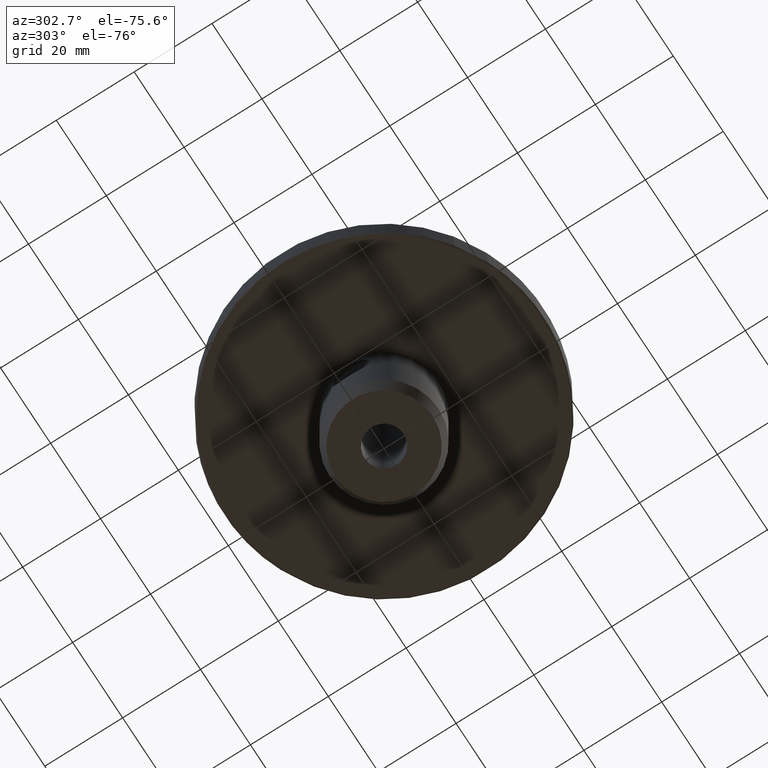
[diagram: clean part render]
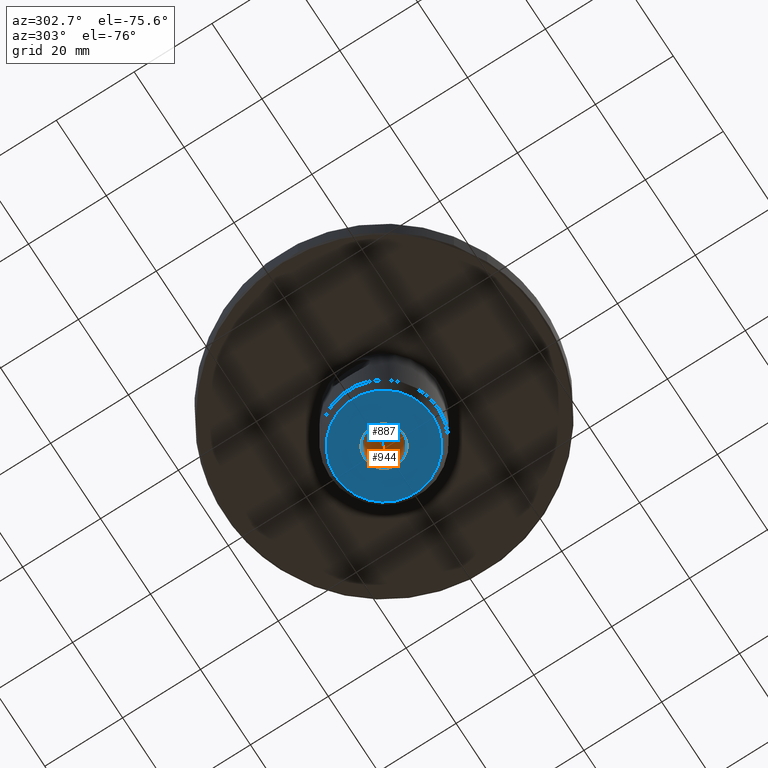
[diagram: same view with the hole feature highlighted: cylindrical wall and planar end face, labeled with their STEP entity ids]
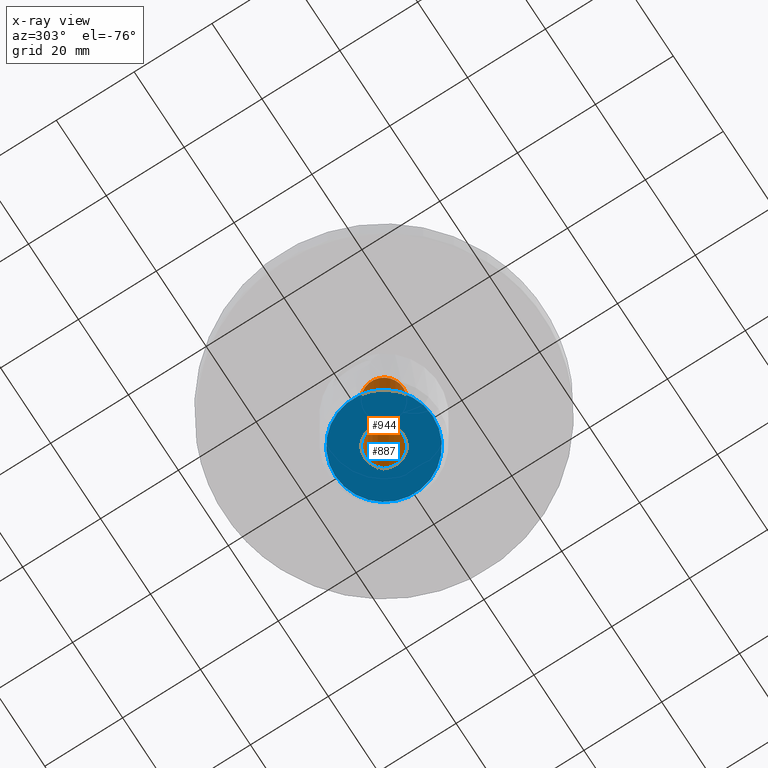
[diagram: x-ray of the same camera — body ghosted, the hole faces saturated]
A machine part, auxiliary view. The highlighted faces form one hole feature of diameter 10 mm: the cylindrical wall (entity #944, orange) and its adjacent planar end face (entity #887, blue) — they share a circular edge in the B-rep.
The next image is the same camera in x-ray (body ghosted, the hole faces saturated) — the bore reads through the body.
Wall:
#114=CIRCLE('',#967,5.);
#162=CIRCLE('',#1072,5.);
#402=ORIENTED_EDGE('',*,*,#531,.T.);
#403=ORIENTED_EDGE('',*,*,#415,.F.);
#415=EDGE_CURVE('',#538,#538,#114,.T.);
#531=EDGE_CURVE('',#623,#623,#162,.T.);
#538=VERTEX_POINT('',#1392);
#623=VERTEX_POINT('',#1794);
#754=EDGE_LOOP('',(#402));
#755=EDGE_LOOP('',(#403));
#849=FACE_BOUND('',#754,.T.);
#850=FACE_BOUND('',#755,.T.);
#883=CYLINDRICAL_SURFACE('',#1071,5.);
#944=ADVANCED_FACE('',(#849,#850),#883,.F.);
#967=AXIS2_PLACEMENT_3D('',#1391,#1090,#1091);
#1071=AXIS2_PLACEMENT_3D('',#1792,#1326,#1327);
#1072=AXIS2_PLACEMENT_3D('',#1793,#1328,#1329);
#1090=DIRECTION('',(0.,0.,1.));
#1091=DIRECTION('',(0.,1.,0.));
#1326=DIRECTION('',(0.,0.,-1.));
#1327=DIRECTION('',(-1.,0.,0.));
#1328=DIRECTION('',(0.,0.,1.));
#1329=DIRECTION('',(0.,1.,0.));
#1391=CARTESIAN_POINT('',(0.,0.,-35.));
#1392=CARTESIAN_POINT('',(0.,5.,-35.));
#1792=CARTESIAN_POINT('',(0.,0.,5.));
#1793=CARTESIAN_POINT('',(0.,0.,5.));
#1794=CARTESIAN_POINT('',(0.,5.,5.));
End face:
#95=PLANE('',#966);
#114=CIRCLE('',#967,5.);
#115=CIRCLE('',#968,12.5);
#169=ORIENTED_EDGE('',*,*,#415,.T.);
#170=ORIENTED_EDGE('',*,*,#416,.T.);
#415=EDGE_CURVE('',#538,#538,#114,.T.);
#416=EDGE_CURVE('',#539,#539,#115,.T.);
#538=VERTEX_POINT('',#1392);
#539=VERTEX_POINT('',#1394);
#672=EDGE_LOOP('',(#169));
#673=EDGE_LOOP('',(#170));
#767=FACE_BOUND('',#672,.T.);
#768=FACE_BOUND('',#673,.T.);
#887=ADVANCED_FACE('',(#767,#768),#95,.T.);
#966=AXIS2_PLACEMENT_3D('',#1390,#1088,#1089);
#967=AXIS2_PLACEMENT_3D('',#1391,#1090,#1091);
#968=AXIS2_PLACEMENT_3D('',#1393,#1092,#1093);
#1088=DIRECTION('',(0.,0.,-1.));
#1089=DIRECTION('',(0.,1.,0.));
#1090=DIRECTION('',(0.,0.,1.));
#1091=DIRECTION('',(0.,1.,0.));
#1092=DIRECTION('',(0.,0.,-1.));
#1093=DIRECTION('',(0.,1.,0.));
#1390=CARTESIAN_POINT('',(0.,12.5,-35.));
#1391=CARTESIAN_POINT('',(0.,0.,-35.));
#1392=CARTESIAN_POINT('',(0.,5.,-35.));
#1393=CARTESIAN_POINT('',(0.,0.,-35.));
#1394=CARTESIAN_POINT('',(0.,12.5,-35.));